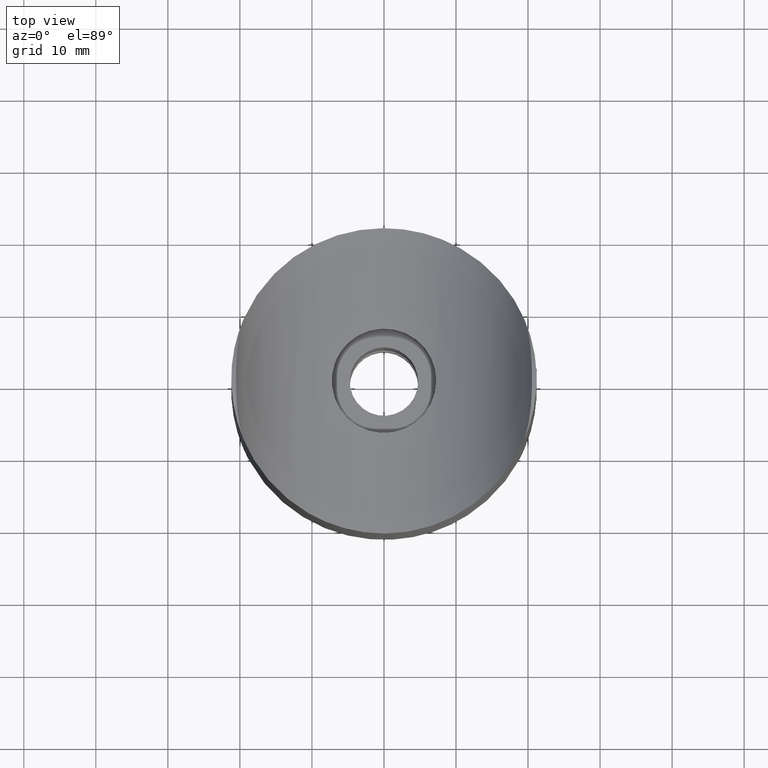
[diagram: clean part render]
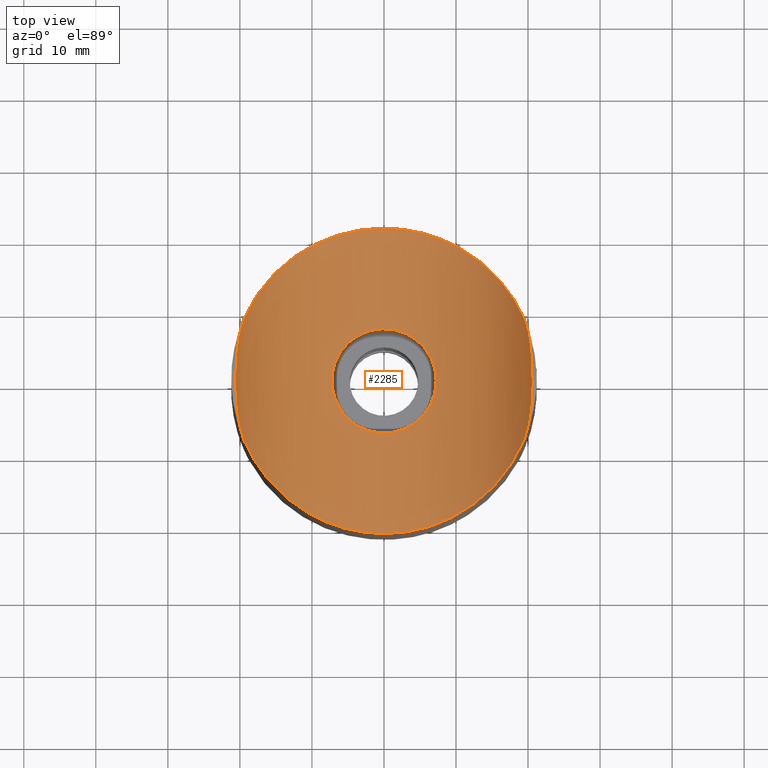
[diagram: same view with one face highlighted and labeled with its STEP entity id]
A machine part, top view. The second image highlights one B-rep face of the part: STEP entity #2285.
In plain terms, the highlighted cylindrical surface (partial cylindrical patch) has radius 21.2 mm, axis along (0, 1, 0).
Its self-contained STEP definition (entity closure, byte-faithful):
#205 = AXIS2_PLACEMENT_3D ( 'NONE', #5895, #13409, #12376 ) ;
#507 = CARTESIAN_POINT ( 'NONE',  ( 19.47698192314896559, 8.371808356939880014, 37.82819164306012283 ) ) ;
#688 = CARTESIAN_POINT ( 'NONE',  ( -19.47698192314896559, -8.371808356939878237, 37.82819164306012993 ) ) ;
#859 = CARTESIAN_POINT ( 'NONE',  ( -4.961887728149400267, -5.291291510677459620, 25.58813029866553634 ) ) ;
#897 = CARTESIAN_POINT ( 'NONE',  ( 4.794854175872542257, 5.458268951572304850, 25.54651072145665935 ) ) ;
#938 = CARTESIAN_POINT ( 'NONE',  ( -6.284210845800437539, -3.645984821129526932, 25.95096090228476982 ) ) ;
#955 = CARTESIAN_POINT ( 'NONE',  ( -19.47698192314896559, -8.371808356939878237, 37.82819164306012993 ) ) ;
#990 = CARTESIAN_POINT ( 'NONE',  ( -7.190882583206960277, -0.9543925950206300080, 26.25678463686065101 ) ) ;
#1014 = CARTESIAN_POINT ( 'NONE',  ( -20.46058540166369255, 3.059655748426153288, 40.64793529514943771 ) ) ;
#1016 = CARTESIAN_POINT ( 'NONE',  ( 20.24383129417523008, 5.215138519920048843, 39.89861249917790076 ) ) ;
#1033 = CARTESIAN_POINT ( 'NONE',  ( -6.512538062397737804, 3.220837523552804171, 26.02418295756667987 ) ) ;
#1102 = CARTESIAN_POINT ( 'NONE',  ( 20.48009319598952160, 2.664877520715789316, 40.72177195033616215 ) ) ;
#1163 = EDGE_CURVE ( 'NONE', #2333, #9660, #3014, .T. ) ;
#1234 = CARTESIAN_POINT ( 'NONE',  ( -20.48009319598952160, -2.664877520715782211, 40.72177195033616215 ) ) ;
#1695 = CARTESIAN_POINT ( 'NONE',  ( 5.292002883686151016, -4.961068277643231106, 25.67041370422164803 ) ) ;
#1734 = CARTESIAN_POINT ( 'NONE',  ( 6.783481717695230451, -2.569661129754948981, 26.11434282070458224 ) ) ;
#1853 = CARTESIAN_POINT ( 'NONE',  ( -19.47698192314896559, 8.371808356939880014, 37.82819164306012283 ) ) ;
#1919 = CARTESIAN_POINT ( 'NONE',  ( -5.461870639133843852, -4.790913465329498244, 25.71278499240156989 ) ) ;
#1934 = CARTESIAN_POINT ( 'NONE',  ( -10.88225247172378296, -28.36741540174245557, 17.83258459825755082 ) ) ;
#1968 = FACE_BOUND ( 'NONE', #5494, .T. ) ;
#1969 = CARTESIAN_POINT ( 'NONE',  ( -0.9566369692030700644, -7.202342973613698796, 25.01643312506577743 ) ) ;
#2014 = CARTESIAN_POINT ( 'NONE',  ( -3.007011386368378059, 6.601309398131061990, 25.21316529528079542 ) ) ;
#2057 = CARTESIAN_POINT ( 'NONE',  ( -2.346359400707024090, 6.876387900135072506, 25.12556071525185786 ) ) ;
#2080 = CARTESIAN_POINT ( 'NONE',  ( -20.55232557136686822, 0.7708758188737838690, 40.99981599898410423 ) ) ;
#2103 = CARTESIAN_POINT ( 'NONE',  ( 1.889166000319858707, 7.003606587722266852, 25.08309510850801871 ) ) ;
#2175 = VERTEX_POINT ( 'NONE', #7223 ) ;
#2285 = ADVANCED_FACE ( 'NONE', ( #1968, #13012 ), #12839, .F. ) ;
#2333 = VERTEX_POINT ( 'NONE', #1853 ) ;
#2737 = EDGE_CURVE ( 'NONE', #2333, #2175, #10684, .T. ) ;
#2770 = CARTESIAN_POINT ( 'NONE',  ( 4.431842194841497218, -5.757450224349422996, 25.46449216879342359 ) ) ;
#2808 = CARTESIAN_POINT ( 'NONE',  ( -19.47698192314896559, -8.371808356939878237, 37.82819164306012993 ) ) ;
#2822 = CARTESIAN_POINT ( 'NONE',  ( 7.202236549575339986, -0.9570018828714323966, 26.26065258830762517 ) ) ;
#2876 = EDGE_CURVE ( 'NONE', #5085, #9660, #4715, .T. ) ;
#2911 = CARTESIAN_POINT ( 'NONE',  ( 7.004391776076588805, -1.886298489068188200, 26.19040381408829532 ) ) ;
#2955 = CARTESIAN_POINT ( 'NONE',  ( 7.250000000000000888, 0.000000000000000000, 26.27821544138177501 ) ) ;
#2958 = ORIENTED_EDGE ( 'NONE', *, *, #7181, .T. ) ;
#3006 = CARTESIAN_POINT ( 'NONE',  ( -2.343731365980564085, -6.877354188263145041, 25.12524757484251836 ) ) ;
#3014 = B_SPLINE_CURVE_WITH_KNOTS ( 'NONE', 3,
 ( #9621, #6523, #3345, #12748, #4345, #10815, #5270, #6344, #1014, #8499, #2080, #3204, #9578, #1234, #10042, #4844, #13200, #9265, #8021, #7030, #4969, #2808 ),
 .UNSPECIFIED., .F., .F.,
 ( 4, 2, 2, 2, 2, 2, 2, 2, 2, 2, 4 ),
 ( 3.469446951953614189E-18, 0.002297565324930346629, 0.003446347987395522762, 0.004595130649860699329, 0.006892695974791056800, 0.009190261299721414270, 0.01148782662465177261, 0.01263660928711695178, 0.01378539194958212921, 0.01608295727451249102, 0.01838052259944284936 ),
 .UNSPECIFIED. ) ;
#3046 = CARTESIAN_POINT ( 'NONE',  ( -5.759433065516853745, -4.428706587053826027, 25.79549507831403687 ) ) ;
#3082 = CARTESIAN_POINT ( 'NONE',  ( 2.345654572570459173, 6.864208478661655732, 25.12891732731176830 ) ) ;
#3131 = CARTESIAN_POINT ( 'NONE',  ( -6.876303559639468155, 2.345931738775585806, 26.14524508502756106 ) ) ;
#3159 = CARTESIAN_POINT ( 'NONE',  ( 19.86088413574621470, 7.204073163656728340, 38.77292442679573981 ) ) ;
#3184 = CARTESIAN_POINT ( 'NONE',  ( 3.218975471921122544, 6.500518986633827545, 25.24474081869307796 ) ) ;
#3204 = CARTESIAN_POINT ( 'NONE',  ( -20.55241849752194483, -0.7648325619719188451, 41.00018327836448151 ) ) ;
#3345 = CARTESIAN_POINT ( 'NONE',  ( -19.85912383825224126, 7.209440190958545713, 38.76847417715065802 ) ) ;
#3470 = EDGE_CURVE ( 'NONE', #8589, #8589, #9565, .T. ) ;
#3824 = ORIENTED_EDGE ( 'NONE', *, *, #1163, .T. ) ;
#3831 = CARTESIAN_POINT ( 'NONE',  ( 19.47698192314896559, -8.371808356939878237, 37.82819164306012283 ) ) ;
#3863 = CARTESIAN_POINT ( 'NONE',  ( 3.224516823743705185, -6.510582053894648169, 25.24205241274557565 ) ) ;
#3997 = CARTESIAN_POINT ( 'NONE',  ( 2.348359331223845992, -6.863274511579638748, 25.12922162904524370 ) ) ;
#4043 = CARTESIAN_POINT ( 'NONE',  ( 5.892557090182336310, -4.230376132583587356, 25.83491791462318332 ) ) ;
#4083 = CARTESIAN_POINT ( 'NONE',  ( -1.889748769253165150, -7.015536201140639250, 25.07921617399670922 ) ) ;
#4126 = CARTESIAN_POINT ( 'NONE',  ( -5.462926514089702756, 4.789915247397683373, 25.71304050749440151 ) ) ;
#4183 = CARTESIAN_POINT ( 'NONE',  ( 0.4777985065261770026, 7.249997686576093336, 25.00000079114732188 ) ) ;
#4228 = CARTESIAN_POINT ( 'NONE',  ( -0.4800756467866349464, 7.238085387647867464, 25.00408349533767094 ) ) ;
#4249 = CARTESIAN_POINT ( 'NONE',  ( 19.68988660031454785, 7.811951999191024676, 38.32351360597515821 ) ) ;
#4270 = CARTESIAN_POINT ( 'NONE',  ( 3.841002185440877792, 6.153497826531591386, 25.34989155617824963 ) ) ;
#4345 = CARTESIAN_POINT ( 'NONE',  ( -20.12694006280294801, 5.911306179428079233, 39.53835085375743574 ) ) ;
#4715 =( BOUNDED_CURVE ( )  B_SPLINE_CURVE ( 3, ( #9472, #10681, #1934, #955 ),
 .UNSPECIFIED., .F., .F. ) 
 B_SPLINE_CURVE_WITH_KNOTS ( ( 4, 4 ),
 ( 5.118344303942862439, 7.448026310416310025 ),
 .UNSPECIFIED. ) 
 CURVE ( )  GEOMETRIC_REPRESENTATION_ITEM ( )  RATIONAL_B_SPLINE_CURVE ( ( 1.000000000000000000, 0.5965977470735812638, 0.5965977470735812638, 1.000000000000000000 ) ) 
 REPRESENTATION_ITEM ( '' )  );
#4844 = CARTESIAN_POINT ( 'NONE',  ( -20.39881846223790518, -3.784746499335642778, 40.42593364867576611 ) ) ;
#4910 = CARTESIAN_POINT ( 'NONE',  ( -10.88225247172379184, 28.36741540174245557, 17.83258459825755438 ) ) ;
#4934 = CARTESIAN_POINT ( 'NONE',  ( 1.892431338738989499, -7.002716058644915975, 25.08339051043943257 ) ) ;
#4969 = CARTESIAN_POINT ( 'NONE',  ( -19.68988660031455140, -7.811951999191025564, 38.32351360597517953 ) ) ;
#5085 = VERTEX_POINT ( 'NONE', #3831 ) ;
#5120 = CARTESIAN_POINT ( 'NONE',  ( 7.062438076636140316, -1.655554104716791652, 26.21089259011972672 ) ) ;
#5171 = CARTESIAN_POINT ( 'NONE',  ( -1.893306789193651696, 7.014520785390477187, 25.07955394206429744 ) ) ;
#5216 = CARTESIAN_POINT ( 'NONE',  ( -4.420518731307494953, 5.751258890511368627, 25.46515579548953312 ) ) ;
#5252 = CARTESIAN_POINT ( 'NONE',  ( -5.760815841621073297, 4.426872302757082878, 25.79588944834129194 ) ) ;
#5270 = CARTESIAN_POINT ( 'NONE',  ( -20.28272701626404739, 4.870488758881912794, 40.02979673881738876 ) ) ;
#5297 = CARTESIAN_POINT ( 'NONE',  ( -4.960688375816870277, 5.292462506426914182, 25.58783515313074730 ) ) ;
#5346 = CARTESIAN_POINT ( 'NONE',  ( 6.865358533641771288, 2.342290632023554586, 26.14227638720990043 ) ) ;
#5374 = CARTESIAN_POINT ( 'NONE',  ( 20.45652232654231639, 3.044123025795492765, 40.63382256943704363 ) ) ;
#5397 = CARTESIAN_POINT ( 'NONE',  ( 7.250000000000000000, 0.4829326223636276616, 26.27821544138177856 ) ) ;
#5482 = CARTESIAN_POINT ( 'NONE',  ( 7.250000000000000888, 0.000000000000000000, 26.27821544138177501 ) ) ;
#5494 = EDGE_LOOP ( 'NONE', ( #5661 ) ) ;
#5661 = ORIENTED_EDGE ( 'NONE', *, *, #3470, .T. ) ;
#5895 = CARTESIAN_POINT ( 'NONE',  ( 0.000000000000000000, -21.19999999999999929, 46.20000000000000284 ) ) ;
#6193 = CARTESIAN_POINT ( 'NONE',  ( 7.004554471377877789, 1.885653695091801252, 26.19046125019305293 ) ) ;
#6232 = CARTESIAN_POINT ( 'NONE',  ( 1.654782290350953922, 7.062676068814881525, 25.06337429442421794 ) ) ;
#6250 = CARTESIAN_POINT ( 'NONE',  ( 20.13929360642726607, 5.898102119356225970, 39.56486448836644598 ) ) ;
#6274 = CARTESIAN_POINT ( 'NONE',  ( -6.285011176621773110, 3.644561984070178617, 25.95121334313777695 ) ) ;
#6298 = CARTESIAN_POINT ( 'NONE',  ( 7.250000000000000000, 0.000000000000000000, 26.27821544138176790 ) ) ;
#6320 = CARTESIAN_POINT ( 'NONE',  ( 0.4818734902393400632, -7.249680505290645449, 25.00010926114103782 ) ) ;
#6344 = CARTESIAN_POINT ( 'NONE',  ( -20.40473783158546084, 3.795545360191830309, 40.44080144233156204 ) ) ;
#6347 = CARTESIAN_POINT ( 'NONE',  ( 20.40473783158545729, -3.795545360191826756, 40.44080144233155494 ) ) ;
#6371 = CARTESIAN_POINT ( 'NONE',  ( -6.874786492142584748, -2.350090507094773962, 26.14472863026725946 ) ) ;
#6523 = CARTESIAN_POINT ( 'NONE',  ( -19.68991037502912533, 7.811889480953814413, 38.32356891776280605 ) ) ;
#6954 = CARTESIAN_POINT ( 'NONE',  ( -19.47698192314896559, 8.371808356939880014, 37.82819164306012283 ) ) ;
#7030 = CARTESIAN_POINT ( 'NONE',  ( -19.86088413574621825, -7.204073163656726564, 38.77292442679578244 ) ) ;
#7181 = EDGE_CURVE ( 'NONE', #5085, #2175, #12630, .T. ) ;
#7223 = CARTESIAN_POINT ( 'NONE',  ( 19.47698192314896559, 8.371808356939880014, 37.82819164306012283 ) ) ;
#7267 = CARTESIAN_POINT ( 'NONE',  ( 0.9548202249930314300, -7.202739017739378191, 25.01630039204185252 ) ) ;
#7311 = CARTESIAN_POINT ( 'NONE',  ( 0.9512028090831805560, 7.203228716476409055, 25.01613312446808735 ) ) ;
#7362 = CARTESIAN_POINT ( 'NONE',  ( -4.232005378712565324, 5.891331145596399033, 25.42574635267014216 ) ) ;
#7402 = CARTESIAN_POINT ( 'NONE',  ( 5.763426133025922660, 4.423481646274625589, 25.79662915280592728 ) ) ;
#7421 = CARTESIAN_POINT ( 'NONE',  ( 20.36464765226230256, 4.147746304199342759, 40.30583564236254546 ) ) ;
#7444 = CARTESIAN_POINT ( 'NONE',  ( -7.261670843123233077, -0.002871798025567096242, 26.28247452916107463 ) ) ;
#7483 = ORIENTED_EDGE ( 'NONE', *, *, #2737, .F. ) ;
#7519 = CARTESIAN_POINT ( 'NONE',  ( 20.06592840846878190, -6.243642590204295573, 39.35590685146057410 ) ) ;
#7740 = EDGE_LOOP ( 'NONE', ( #11314, #2958, #7483, #3824 ) ) ;
#8021 = CARTESIAN_POINT ( 'NONE',  ( -20.13929360642726252, -5.898102119356222417, 39.56486448836645309 ) ) ;
#8305 = CARTESIAN_POINT ( 'NONE',  ( 6.509725557862073408, -3.226624134545732048, 26.02326916184721739 ) ) ;
#8326 = CARTESIAN_POINT ( 'NONE',  ( 19.68991037502912889, -7.811889480953816189, 38.32356891776281316 ) ) ;
#8355 = CARTESIAN_POINT ( 'NONE',  ( -3.644503179383114411, -6.285018690129453134, 25.31181856569208222 ) ) ;
#8403 = CARTESIAN_POINT ( 'NONE',  ( 5.459349115452873491, 4.793624281395493014, 25.71213156078965412 ) ) ;
#8439 = CARTESIAN_POINT ( 'NONE',  ( -3.640238106544555929, 6.274323524026138799, 25.31380208191954395 ) ) ;
#8478 = CARTESIAN_POINT ( 'NONE',  ( -3.841864781931651152, 6.152863332618361270, 25.35007052466595567 ) ) ;
#8499 = CARTESIAN_POINT ( 'NONE',  ( -20.53453412056198957, 1.550209013814738856, 40.92800930225627809 ) ) ;
#8502 = CARTESIAN_POINT ( 'NONE',  ( 20.39881846223789807, 3.784746499335643222, 40.42593364867575900 ) ) ;
#8532 = CARTESIAN_POINT ( 'NONE',  ( -0.2388465963188751984, 7.250001156584479745, 24.99999960446993441 ) ) ;
#8555 = CARTESIAN_POINT ( 'NONE',  ( 19.47698192314896559, 8.371808356939880014, 37.82819164306012283 ) ) ;
#8576 = CARTESIAN_POINT ( 'NONE',  ( 7.202198424912305441, 0.9571122672483783900, 26.26063926573250029 ) ) ;
#8589 = VERTEX_POINT ( 'NONE', #6298 ) ;
#9188 = CARTESIAN_POINT ( 'NONE',  ( 4.794506645124588573, -5.458495940767761567, 25.54644006431659875 ) ) ;
#9265 = CARTESIAN_POINT ( 'NONE',  ( -20.24383129417523364, -5.215138519920045290, 39.89861249917792918 ) ) ;
#9316 = CARTESIAN_POINT ( 'NONE',  ( 7.250000000000002665, -0.4829326223636258852, 26.27821544138177146 ) ) ;
#9415 = CARTESIAN_POINT ( 'NONE',  ( -7.238519723795994842, 0.4726323275835456195, 26.27402570532306569 ) ) ;
#9456 = CARTESIAN_POINT ( 'NONE',  ( -3.226555368670448232, -6.510024408526104978, 25.24224232055189177 ) ) ;
#9472 = CARTESIAN_POINT ( 'NONE',  ( 19.47698192314896559, -8.371808356939878237, 37.82819164306012283 ) ) ;
#9507 = CARTESIAN_POINT ( 'NONE',  ( -4.419892896670888582, -5.751778146353813348, 25.46501574993812511 ) ) ;
#9559 = CARTESIAN_POINT ( 'NONE',  ( -0.9587532348326648357, 7.190350821776156920, 25.02033660952202609 ) ) ;
#9565 = B_SPLINE_CURVE_WITH_KNOTS ( 'NONE', 3,
 ( #2955, #9316, #2822, #5120, #2911, #10438, #1734, #8305, #11368, #4043, #11501, #12594, #1695, #9188, #2770, #10260, #3863, #11313, #3997, #4934, #12451, #7267, #6320, #10483, #1969, #4083, #3006, #9456, #8355, #13803, #9507, #13761, #859, #1919, #3046, #938, #11551, #6371, #11591, #12684, #990, #12636, #7444, #9415, #10530, #10662, #13851, #3131, #1033, #6274, #5252, #4126, #5297, #10568, #5216, #7362, #8478, #8439, #13665, #2014, #2057, #5171, #11738, #9559, #4228, #8532, #4183, #7311, #6232, #2103, #3082, #9599, #11635, #3184, #13719, #4270, #12731, #897, #8403, #7402, #10612, #11690, #12769, #5346, #6193, #11879, #8576, #5397, #5482 ),
 .UNSPECIFIED., .T., .F.,
 ( 4, 2, 2, 2, 2, 2, 2, 2, 2, 2, 2, 2, 2, 2, 2, 2, 2, 2, 2, 2, 2, 1, 2, 2, 2, 2, 2, 2, 2, 2, 2, 2, 2, 2, 2, 2, 2, 2, 2, 2, 2, 2, 2, 2, 4 ),
 ( 0.000000000000000000, 0.001427308038129298726, 0.002140962057193948956, 0.002854616076258599620, 0.004281924114387900514, 0.004995578133452549877, 0.005709232152517198372, 0.007136540190646494496, 0.008563848228775792354, 0.009277502247840440849, 0.009991156266905089345, 0.01141846430503438634, 0.01284577234316368333, 0.01427308038129297858, 0.01570038841942227384, 0.01641404243848692407, 0.01712769645755157430, 0.01855500449568087129, 0.01998231253381017522, 0.02140962057193947221, 0.02212327459100412244, 0.02283692861006877267, 0.02355058262913342290, 0.02426423664819807313, 0.02569154468632737359, 0.02711885272445666711, 0.02854616076258597104, 0.02925981478165062127, 0.02997346880071527150, 0.03068712281977992173, 0.03140077683884456849, 0.03282808487697387589, 0.03354173889603852265, 0.03425539291510316942, 0.03568270095323246988, 0.03639635497229711664, 0.03711000899136177034, 0.03782366301042641710, 0.03853731702949107080, 0.03996462506762037126, 0.04139193310574967866, 0.04281924114387897912, 0.04353289516294363282, 0.04424654918200827958, 0.04567385722013758698 ),
 .UNSPECIFIED. ) ;
#9578 = CARTESIAN_POINT ( 'NONE',  ( -20.53528304820682493, -1.527824566154132979, 40.93094414034267459 ) ) ;
#9579 = CARTESIAN_POINT ( 'NONE',  ( 20.55241849752194838, 0.7648325619719235080, 41.00018327836448861 ) ) ;
#9599 = CARTESIAN_POINT ( 'NONE',  ( 2.568855173014327420, 6.783761352755690588, 25.15506023593373541 ) ) ;
#9621 = CARTESIAN_POINT ( 'NONE',  ( -19.47698192314896559, 8.371808356939880014, 37.82819164306012283 ) ) ;
#9660 = VERTEX_POINT ( 'NONE', #688 ) ;
#9667 = CARTESIAN_POINT ( 'NONE',  ( 20.55232557136687532, -0.7708758188737772077, 40.99981599898411133 ) ) ;
#10042 = CARTESIAN_POINT ( 'NONE',  ( -20.45652232654231995, -3.044123025795494097, 40.63382256943705784 ) ) ;
#10260 = CARTESIAN_POINT ( 'NONE',  ( 3.640337174190669156, -6.287877510260854841, 25.31099678021442045 ) ) ;
#10417 = CARTESIAN_POINT ( 'NONE',  ( 19.47698192314896559, -8.371808356939878237, 37.82819164306012283 ) ) ;
#10438 = CARTESIAN_POINT ( 'NONE',  ( 6.864947048405167784, -2.343528998161402033, 26.14213506629842598 ) ) ;
#10483 = CARTESIAN_POINT ( 'NONE',  ( -0.4722111775666740230, -7.250316275388800413, 24.99989183980575191 ) ) ;
#10530 = CARTESIAN_POINT ( 'NONE',  ( -7.191716234747705272, 0.9480330731187190940, 26.25708554441513698 ) ) ;
#10568 = CARTESIAN_POINT ( 'NONE',  ( -4.784453945466626834, 5.452244044724641192, 25.54609599899160344 ) ) ;
#10612 = CARTESIAN_POINT ( 'NONE',  ( 6.287238633193505066, 3.640728091337463557, 25.95190742098767345 ) ) ;
#10635 = CARTESIAN_POINT ( 'NONE',  ( 19.85912383825224481, -7.209440190958538608, 38.76847417715067223 ) ) ;
#10662 = CARTESIAN_POINT ( 'NONE',  ( -7.156177727786752207, 1.187067269414617821, 26.24425862712031687 ) ) ;
#10681 = CARTESIAN_POINT ( 'NONE',  ( 10.88225247172379184, -28.36741540174245557, 17.83258459825755438 ) ) ;
#10684 =( BOUNDED_CURVE ( )  B_SPLINE_CURVE ( 3, ( #6954, #4910, #13317, #507 ),
 .UNSPECIFIED., .F., .F. ) 
 B_SPLINE_CURVE_WITH_KNOTS ( ( 4, 4 ),
 ( 5.118344303942862439, 7.448026310416310025 ),
 .UNSPECIFIED. ) 
 CURVE ( )  GEOMETRIC_REPRESENTATION_ITEM ( )  RATIONAL_B_SPLINE_CURVE ( ( 1.000000000000000000, 0.5965977470735812638, 0.5965977470735812638, 1.000000000000000000 ) ) 
 REPRESENTATION_ITEM ( '' )  );
#10815 = CARTESIAN_POINT ( 'NONE',  ( -20.23529040361047038, 5.225441956113158426, 39.87510411778605146 ) ) ;
#11313 = CARTESIAN_POINT ( 'NONE',  ( 2.571139155122228903, -6.782876624395625775, 25.15534480208394896 ) ) ;
#11314 = ORIENTED_EDGE ( 'NONE', *, *, #2876, .F. ) ;
#11368 = CARTESIAN_POINT ( 'NONE',  ( 6.286913508811751150, -3.641491956531571983, 25.95179247060379168 ) ) ;
#11501 = CARTESIAN_POINT ( 'NONE',  ( 5.750198254161105638, -4.421941696019374923, 25.79413230358359144 ) ) ;
#11551 = CARTESIAN_POINT ( 'NONE',  ( -6.511739008375239557, -3.222246078574284134, 26.02392867496320150 ) ) ;
#11591 = CARTESIAN_POINT ( 'NONE',  ( -7.013546906630644173, -1.897859625115786208, 26.19349642912580478 ) ) ;
#11635 = CARTESIAN_POINT ( 'NONE',  ( 3.005515933870000378, 6.601917067209928547, 25.21297113585742622 ) ) ;
#11661 = CARTESIAN_POINT ( 'NONE',  ( 20.23529040361046683, -5.225441956113150432, 39.87510411778605146 ) ) ;
#11690 = CARTESIAN_POINT ( 'NONE',  ( 6.509851379537835214, 3.226429652034600970, 26.02330857311110535 ) ) ;
#11738 = CARTESIAN_POINT ( 'NONE',  ( -1.194776294910107728, 7.154817448180726736, 25.03240748984039499 ) ) ;
#11801 = CARTESIAN_POINT ( 'NONE',  ( 20.46058540166369255, -3.059655748426147071, 40.64793529514943771 ) ) ;
#11879 = CARTESIAN_POINT ( 'NONE',  ( 7.062527813327396764, 1.655145732846091677, 26.21092440739839446 ) ) ;
#12376 = DIRECTION ( 'NONE',  ( 0.000000000000000000, 0.000000000000000000, 1.000000000000000000 ) ) ;
#12451 = CARTESIAN_POINT ( 'NONE',  ( 1.658086648949339104, -7.061898216450464005, 25.06363438643857933 ) ) ;
#12594 = CARTESIAN_POINT ( 'NONE',  ( 5.450020823086101807, -4.787026358093295464, 25.71191835642642687 ) ) ;
#12630 = B_SPLINE_CURVE_WITH_KNOTS ( 'NONE', 3,
 ( #10417, #8326, #10635, #7519, #12792, #11661, #12840, #6347, #11801, #12749, #9667, #9579, #12658, #1102, #5374, #8502, #7421, #1016, #6250, #3159, #4249, #8555 ),
 .UNSPECIFIED., .F., .F.,
 ( 4, 2, 2, 2, 2, 2, 2, 2, 2, 2, 4 ),
 ( 8.673617379884035472E-18, 0.002297565324930365711, 0.003446347987395540109, 0.004595130649860714074, 0.006892695974791069810, 0.009190261299721426413, 0.01148782662465178128, 0.01263660928711695698, 0.01378539194958213442, 0.01608295727451249102, 0.01838052259944284589 ),
 .UNSPECIFIED. ) ;
#12636 = CARTESIAN_POINT ( 'NONE',  ( -7.238136389177529217, -0.4785803616567027019, 26.27388615515582870 ) ) ;
#12658 = CARTESIAN_POINT ( 'NONE',  ( 20.53528304820682848, 1.527824566154140973, 40.93094414034268169 ) ) ;
#12684 = CARTESIAN_POINT ( 'NONE',  ( -7.155043788601263444, -1.193796978232355199, 26.24385170633055253 ) ) ;
#12731 = CARTESIAN_POINT ( 'NONE',  ( 4.432367805953225215, 5.756904445230269118, 25.46463419026552089 ) ) ;
#12748 = CARTESIAN_POINT ( 'NONE',  ( -20.06592840846878190, 6.243642590204299125, 39.35590685146058121 ) ) ;
#12749 = CARTESIAN_POINT ( 'NONE',  ( 20.53453412056199312, -1.550209013814733527, 40.92800930225628520 ) ) ;
#12769 = CARTESIAN_POINT ( 'NONE',  ( 6.783783114446720219, 2.568883994451139685, 26.11444431597576710 ) ) ;
#12792 = CARTESIAN_POINT ( 'NONE',  ( 20.12694006280295156, -5.911306179428071239, 39.53835085375744285 ) ) ;
#12839 = CYLINDRICAL_SURFACE ( 'NONE', #205, 21.19999999999999574 ) ;
#12840 = CARTESIAN_POINT ( 'NONE',  ( 20.28272701626405095, -4.870488758881908353, 40.02979673881739586 ) ) ;
#13012 = FACE_OUTER_BOUND ( 'NONE', #7740, .T. ) ;
#13200 = CARTESIAN_POINT ( 'NONE',  ( -20.36464765226230966, -4.147746304199337430, 40.30583564236255967 ) ) ;
#13317 = CARTESIAN_POINT ( 'NONE',  ( 10.88225247172378296, 28.36741540174245557, 17.83258459825755082 ) ) ;
#13409 = DIRECTION ( 'NONE',  ( -0.000000000000000000, 1.000000000000000000, -0.000000000000000000 ) ) ;
#13665 = CARTESIAN_POINT ( 'NONE',  ( -3.223449022790385143, 6.498295588379972898, 25.24543072876374339 ) ) ;
#13719 = CARTESIAN_POINT ( 'NONE',  ( 3.636215122921613752, 6.276662310834707270, 25.31309908041850676 ) ) ;
#13761 = CARTESIAN_POINT ( 'NONE',  ( -4.785265091308676944, -5.451572531739592442, 25.54627725870568256 ) ) ;
#13803 = CARTESIAN_POINT ( 'NONE',  ( -4.230815641621738621, -5.892201612857570936, 25.42550046882275439 ) ) ;
#13851 = CARTESIAN_POINT ( 'NONE',  ( -7.015049260418604327, 1.892516147631738921, 26.19402445453778583 ) ) ;